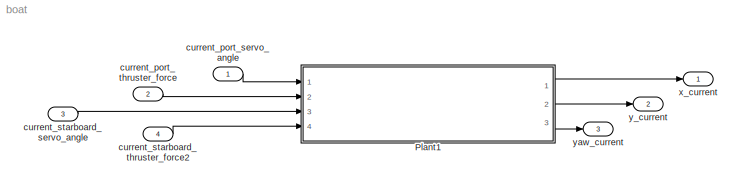
MODEL boat
KIND model
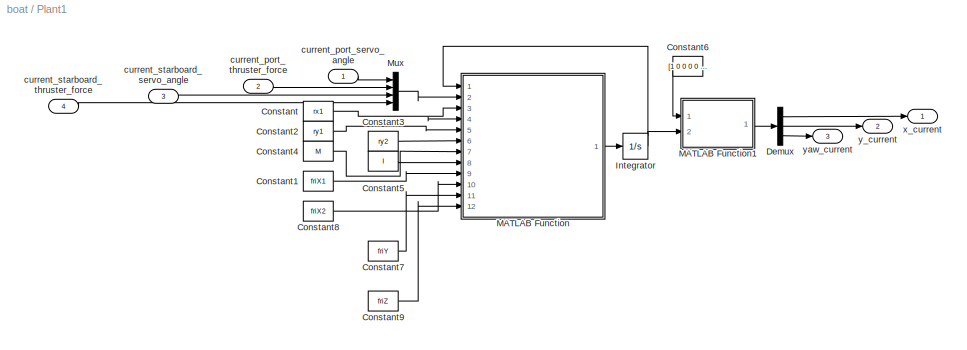
BLOCK [SubSystem] Plant1
  Ports = [4, 3]
  RequestExecContextInheritance = off
  SID = 1
BLOCK [Constant] Plant1/Constant
  SID = 3
  Value = rx1
BLOCK [Constant] Plant1/Constant1
  SID = 31
  Value = friX1
BLOCK [Constant] Plant1/Constant2
  SID = 5
  Value = ry1
BLOCK [Constant] Plant1/Constant3
  SID = 6
  Value = ry2
BLOCK [Constant] Plant1/Constant4
  SID = 7
  Value = M
BLOCK [Constant] Plant1/Constant5
  SID = 8
  Value = I
BLOCK [Constant] Plant1/Constant6
  SID = 9
  Value = [1 0 0 0 0 0;0 0 1 0 0 0;0 0 0 0 1 0]
BLOCK [Constant] Plant1/Constant7
  SID = 32
  Value = friY
BLOCK [Constant] Plant1/Constant8
  SID = 35
  Value = friX2
BLOCK [Constant] Plant1/Constant9
  SID = 34
  Value = friZ
BLOCK [Demux] Plant1/Demux
  DisplayOption = bar
  Outputs = 3
  Ports = [1, 3]
  SID = 18
BLOCK [Integrator] Plant1/Integrator
  InitialCondition = [0 0 0 0 0 0]
  Ports = [1, 1]
  SID = 10
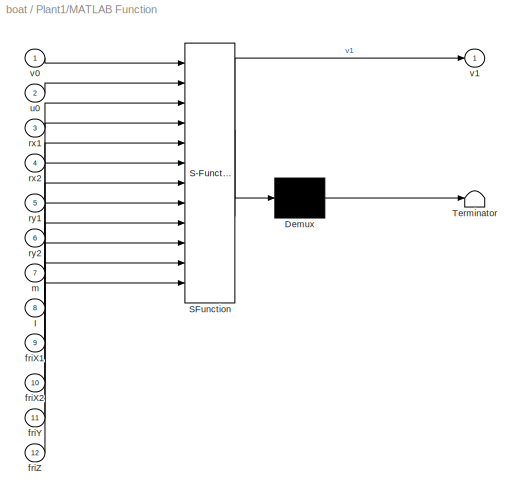
BLOCK [SubSystem] Plant1/MATLAB Function
  ErrorFcn = Stateflow.Translate.translate
  PermitHierarchicalResolution = ExplicitOnly
  Ports = [12, 1]
  RequestExecContextInheritance = off
  SFBlockType = MATLAB Function
  SID = 11
  TreatAsAtomicUnit = on
BLOCK [Demux] Plant1/MATLAB Function/ Demux 
  Outputs = 1
  Ports = [1, 1]
  SID = 11::43
BLOCK [S-Function] Plant1/MATLAB Function/ SFunction 
  EnableBusSupport = off
  FunctionName = sf_sfun
  PortCounts = [12 2]
  Ports = [12, 2]
  SID = 11::42
  Tag = Stateflow S-Function boat 5
BLOCK [Terminator] Plant1/MATLAB Function/ Terminator 
  SID = 11::44
BLOCK [Inport] Plant1/MATLAB Function/I
  IconDisplay = Port number
  Port = 8
  SID = 11::30
BLOCK [Inport] Plant1/MATLAB Function/friX1
  IconDisplay = Port number
  Port = 9
  SID = 11::39
BLOCK [Inport] Plant1/MATLAB Function/friX2
  IconDisplay = Port number
  Port = 10
  SID = 11::45
BLOCK [Inport] Plant1/MATLAB Function/friY
  IconDisplay = Port number
  Port = 11
  SID = 11::40
BLOCK [Inport] Plant1/MATLAB Function/friZ
  IconDisplay = Port number
  Port = 12
  SID = 11::41
BLOCK [Inport] Plant1/MATLAB Function/m
  IconDisplay = Port number
  Port = 7
  SID = 11::29
BLOCK [Inport] Plant1/MATLAB Function/rx1
  IconDisplay = Port number
  Port = 3
  SID = 11::25
BLOCK [Inport] Plant1/MATLAB Function/rx2
  IconDisplay = Port number
  Port = 4
  SID = 11::26
BLOCK [Inport] Plant1/MATLAB Function/ry1
  IconDisplay = Port number
  Port = 5
  SID = 11::27
BLOCK [Inport] Plant1/MATLAB Function/ry2
  IconDisplay = Port number
  Port = 6
  SID = 11::28
BLOCK [Inport] Plant1/MATLAB Function/u0
  IconDisplay = Port number
  Port = 2
  SID = 11::24
BLOCK [Inport] Plant1/MATLAB Function/v0
  IconDisplay = Port number
  SID = 11::1
BLOCK [Outport] Plant1/MATLAB Function/v1
  IconDisplay = Port number
  SID = 11::5
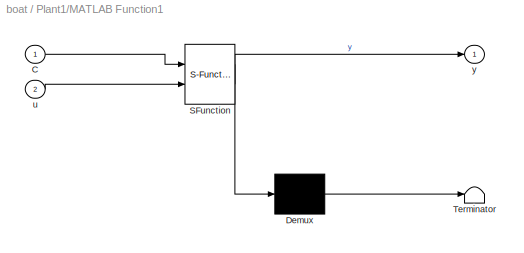
BLOCK [SubSystem] Plant1/MATLAB Function1
  ErrorFcn = Stateflow.Translate.translate
  PermitHierarchicalResolution = ExplicitOnly
  Ports = [2, 1]
  RequestExecContextInheritance = off
  SFBlockType = MATLAB Function
  SID = 12
  TreatAsAtomicUnit = on
BLOCK [Demux] Plant1/MATLAB Function1/ Demux 
  Outputs = 1
  Ports = [1, 1]
  SID = 12::28
BLOCK [S-Function] Plant1/MATLAB Function1/ SFunction 
  EnableBusSupport = off
  FunctionName = sf_sfun
  PortCounts = [2 2]
  Ports = [2, 2]
  SID = 12::27
  Tag = Stateflow S-Function boat 6
BLOCK [Terminator] Plant1/MATLAB Function1/ Terminator 
  SID = 12::29
BLOCK [Inport] Plant1/MATLAB Function1/C
  IconDisplay = Port number
  SID = 12::23
BLOCK [Inport] Plant1/MATLAB Function1/u
  IconDisplay = Port number
  Port = 2
  SID = 12::1
BLOCK [Outport] Plant1/MATLAB Function1/y
  IconDisplay = Port number
  SID = 12::5
BLOCK [Mux] Plant1/Mux
  DisplayOption = bar
  Ports = [4, 1]
  SID = 19
BLOCK [Inport] Plant1/current_port_servo_angle
  IconDisplay = Port number
  SID = 22
BLOCK [Inport] Plant1/current_port_thruster_force
  IconDisplay = Port number
  Port = 2
  SID = 23
BLOCK [Inport] Plant1/current_starboard_servo_angle
  IconDisplay = Port number
  Port = 3
  SID = 24
BLOCK [Inport] Plant1/current_starboard_thruster_force
  IconDisplay = Port number
  Port = 4
  SID = 25
BLOCK [Outport] Plant1/x_current
  IconDisplay = Port number
  SID = 14
BLOCK [Outport] Plant1/y_current
  IconDisplay = Port number
  Port = 2
  SID = 20
BLOCK [Outport] Plant1/yaw_current
  IconDisplay = Port number
  Port = 3
  SID = 21
BLOCK [Inport] current_port_servo_angle
  IconDisplay = Port number
  SID = 17
BLOCK [Inport] current_port_thruster_force
  IconDisplay = Port number
  Port = 2
  SID = 26
BLOCK [Inport] current_starboard_servo_angle
  IconDisplay = Port number
  Port = 3
  SID = 27
BLOCK [Inport] current_starboard_thruster_force2
  IconDisplay = Port number
  Port = 4
  SID = 28
BLOCK [Outport] x_current
  IconDisplay = Port number
  SID = 15
BLOCK [Outport] y_current
  IconDisplay = Port number
  Port = 2
  SID = 16
BLOCK [Outport] yaw_current
  IconDisplay = Port number
  Port = 3
  SID = 29
LINE Plant1/Constant1:1 -> Plant1/MATLAB Function:9
LINE Plant1/Constant2:1 -> Plant1/MATLAB Function:5
LINE Plant1/Constant3:1 -> Plant1/MATLAB Function:6
LINE Plant1/Constant4:1 -> Plant1/MATLAB Function:7
LINE Plant1/Constant5:1 -> Plant1/MATLAB Function:8
LINE Plant1/Constant6:1 -> Plant1/MATLAB Function1:1
LINE Plant1/Constant7:1 -> Plant1/MATLAB Function:11
LINE Plant1/Constant8:1 -> Plant1/MATLAB Function:10
LINE Plant1/Constant9:1 -> Plant1/MATLAB Function:12
NET Plant1/Constant:1 -> Plant1/MATLAB Function:3, Plant1/MATLAB Function:4
LINE Plant1/Demux:1 -> Plant1/x_current:1
LINE Plant1/Demux:2 -> Plant1/y_current:1
LINE Plant1/Demux:3 -> Plant1/yaw_current:1
NET Plant1/Integrator:1 -> Plant1/MATLAB Function1:2, Plant1/MATLAB Function:1
LINE Plant1/MATLAB Function/ Demux :1 -> Plant1/MATLAB Function/ Terminator :1
LINE Plant1/MATLAB Function/ SFunction :1 -> Plant1/MATLAB Function/ Demux :1
LINE Plant1/MATLAB Function/ SFunction :2 -> Plant1/MATLAB Function/v1:1
LINE Plant1/MATLAB Function/I:1 -> Plant1/MATLAB Function/ SFunction :8
LINE Plant1/MATLAB Function/friX1:1 -> Plant1/MATLAB Function/ SFunction :9
LINE Plant1/MATLAB Function/friX2:1 -> Plant1/MATLAB Function/ SFunction :10
LINE Plant1/MATLAB Function/friY:1 -> Plant1/MATLAB Function/ SFunction :11
LINE Plant1/MATLAB Function/friZ:1 -> Plant1/MATLAB Function/ SFunction :12
LINE Plant1/MATLAB Function/m:1 -> Plant1/MATLAB Function/ SFunction :7
LINE Plant1/MATLAB Function/rx1:1 -> Plant1/MATLAB Function/ SFunction :3
LINE Plant1/MATLAB Function/rx2:1 -> Plant1/MATLAB Function/ SFunction :4
LINE Plant1/MATLAB Function/ry1:1 -> Plant1/MATLAB Function/ SFunction :5
LINE Plant1/MATLAB Function/ry2:1 -> Plant1/MATLAB Function/ SFunction :6
LINE Plant1/MATLAB Function/u0:1 -> Plant1/MATLAB Function/ SFunction :2
LINE Plant1/MATLAB Function/v0:1 -> Plant1/MATLAB Function/ SFunction :1
LINE Plant1/MATLAB Function1/ Demux :1 -> Plant1/MATLAB Function1/ Terminator :1
LINE Plant1/MATLAB Function1/ SFunction :1 -> Plant1/MATLAB Function1/ Demux :1
LINE Plant1/MATLAB Function1/ SFunction :2 -> Plant1/MATLAB Function1/y:1
LINE Plant1/MATLAB Function1/C:1 -> Plant1/MATLAB Function1/ SFunction :1
LINE Plant1/MATLAB Function1/u:1 -> Plant1/MATLAB Function1/ SFunction :2
LINE Plant1/MATLAB Function1:1 -> Plant1/Demux:1
LINE Plant1/MATLAB Function:1 -> Plant1/Integrator:1
LINE Plant1/Mux:1 -> Plant1/MATLAB Function:2
LINE Plant1/current_port_servo_angle:1 -> Plant1/Mux:1
LINE Plant1/current_port_thruster_force:1 -> Plant1/Mux:2
LINE Plant1/current_starboard_servo_angle:1 -> Plant1/Mux:3
LINE Plant1/current_starboard_thruster_force:1 -> Plant1/Mux:4
LINE Plant1:1 -> x_current:1
LINE Plant1:2 -> y_current:1
LINE Plant1:3 -> yaw_current:1
LINE current_port_servo_angle:1 -> Plant1:1
LINE current_port_thruster_force:1 -> Plant1:2
LINE current_starboard_servo_angle:1 -> Plant1:3
LINE current_starboard_thruster_force2:1 -> Plant1:4
note: NET lines group one-source signal fan-out (src -> all destinations, sorted); 1:1 wires keep LINE
CHART Plant1/MATLAB Function states=1 transitions=1
  STATE_LABEL 'eML_blk_kernel()'
CHART Plant1/MATLAB Function1 states=1 transitions=1
  STATE_LABEL 'eML_blk_kernel()'
